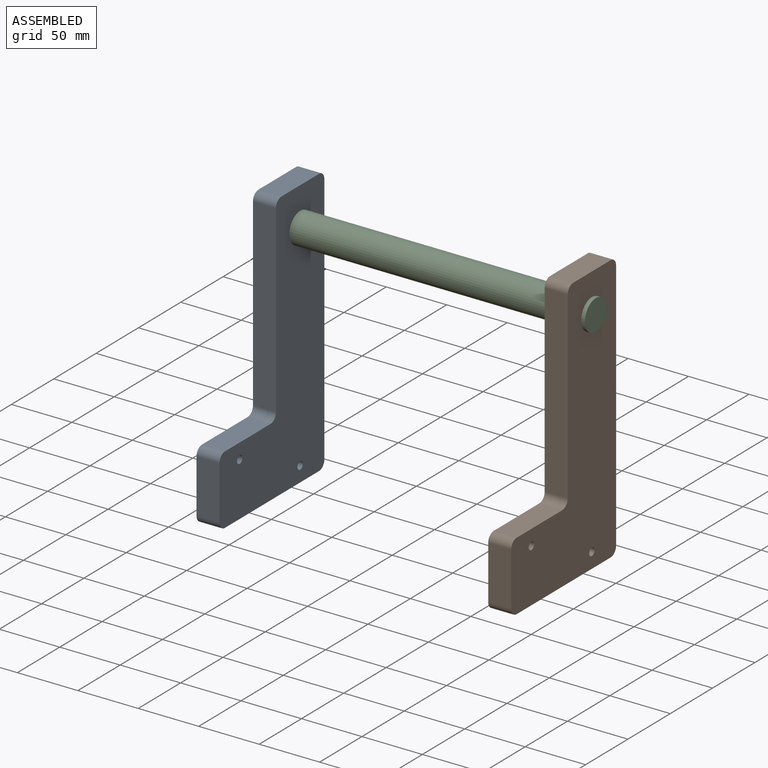
[diagram: assembled view]
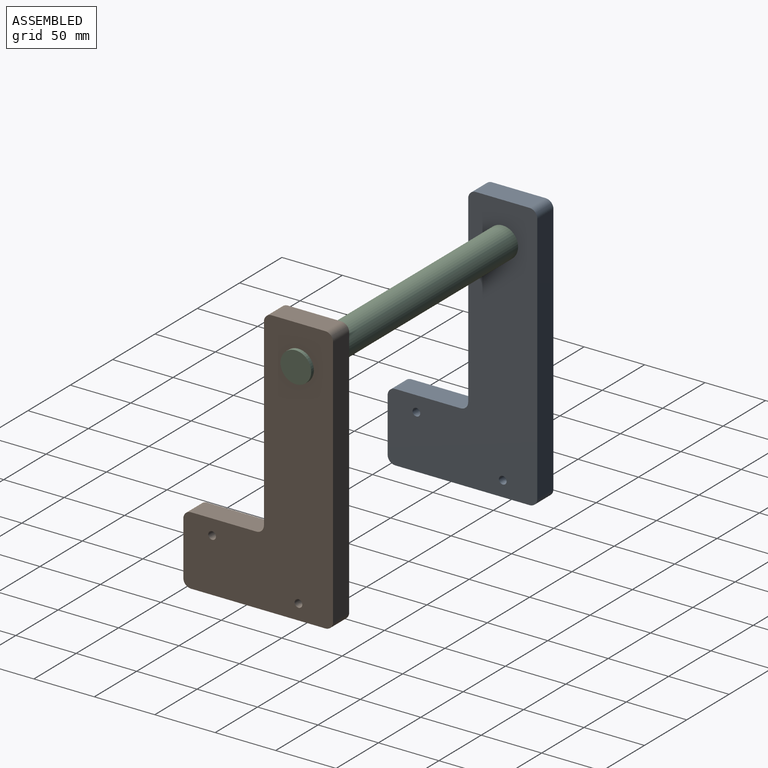
[diagram: assembled view, second angle]
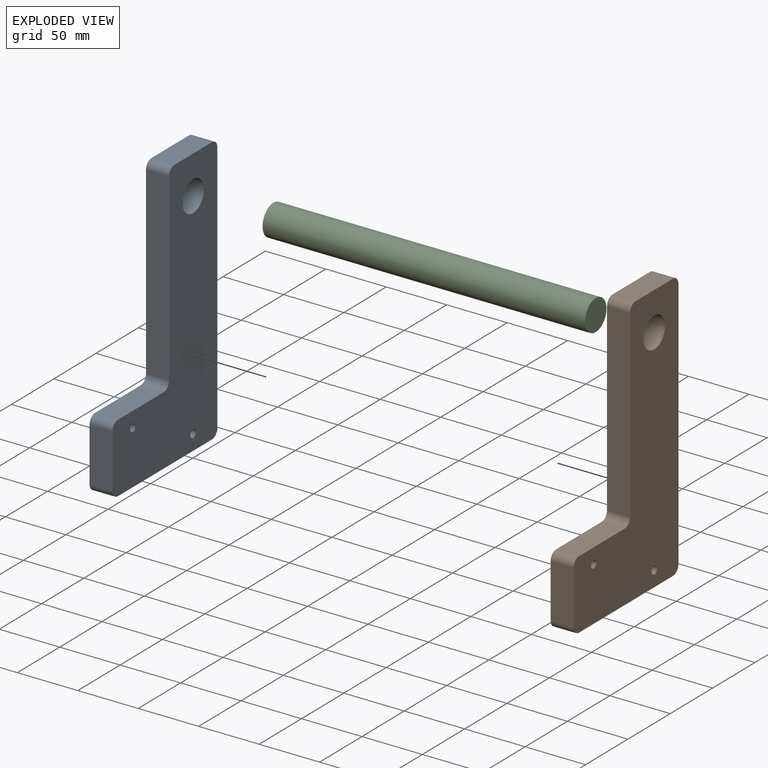
[diagram: exploded view]
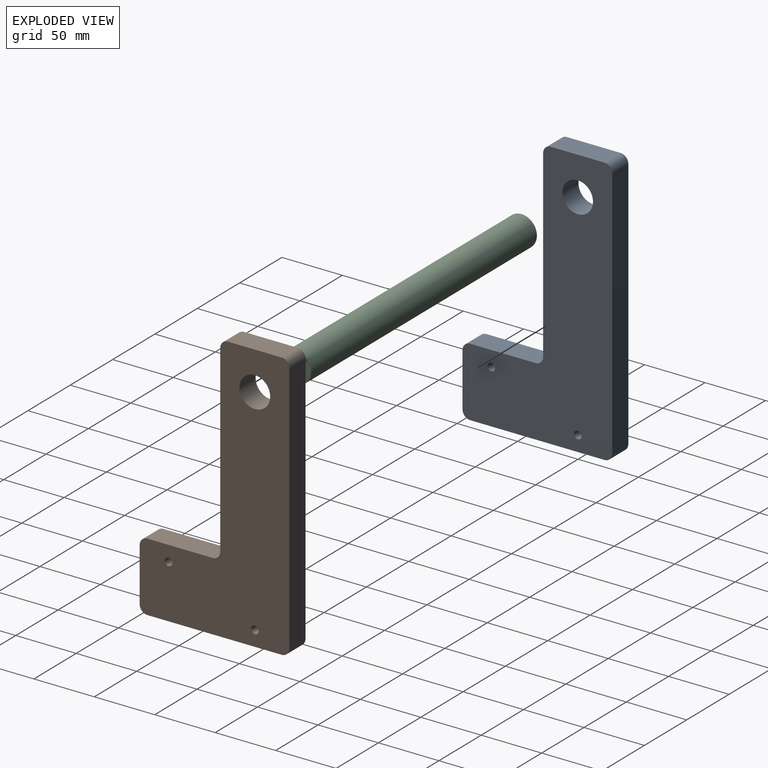
[diagram: exploded view, second angle]
ASSEMBLY  parts=3 mates=2
PART A: 17 faces, bbox 222.3x19.1x123.8 mm
  f0: plane 44.45x19.05mm, normal (0,0,-1), area 846.8mm2, adj f9,f10,f11,f16
  f1: plane 53.98x19.05mm, normal (1,0,0), area 1028.2mm2, adj f9,f10,f11,f12
  f2: plane 152.4x19.05mm, normal (0,0,-1), area 2903.2mm2, adj f9,f10,f12,f13
  f3: plane 44.45x19.05mm, normal (1,0,0), area 846.8mm2, adj f9,f10,f13,f14
  f4: plane 209.55x19.05mm, normal (0,0,1), area 3991.9mm2, adj f9,f10,f14,f15
  f5: cylinder r=12.7mm len=25.4mm, axis (0,1,0), area 1520.1mm2, adj f9,f10
  f6: cylinder r=3.17mm len=19.05mm, axis (0,1,0), area 380mm2, adj f9,f10
  f7: cylinder r=3.17mm len=19.05mm, axis (0,1,0), area 380mm2, adj f9,f10
  f8: plane 111.13x19.05mm, normal (-1,0,0), area 2116.9mm2, adj f9,f10,f15,f16
  f9: plane 222.25x123.83mm, normal (0,-1,0), area 15907.4mm2, adj f0,f1,f2,f3,f4,f5,f6,f7
  f10: plane 222.25x123.83mm, normal (0,1,0), area 15907.4mm2, adj f0,f1,f2,f3,f4,f5,f6,f7
  f11: cylinder r=6.35mm len=19.05mm, axis (0,1,0), area 190mm2, adj f0,f1,f9,f10
  f12: cylinder r=6.35mm len=19.05mm, axis (0,-1,0), area 190mm2, adj f1,f2,f9,f10
  f13: cylinder r=6.35mm len=19.05mm, axis (0,1,0), area 190mm2, adj f2,f3,f9,f10
  f14: cylinder r=6.35mm len=19.05mm, axis (0,1,0), area 190mm2, adj f3,f4,f9,f10
  f15: cylinder r=6.35mm len=19.05mm, axis (0,1,0), area 190mm2, adj f4,f8,f9,f10
  f16: cylinder r=6.35mm len=19.05mm, axis (0,1,0), area 190mm2, adj f0,f8,f9,f10
PART B: same geometry as A
PART C: 3 faces, bbox 266.7x25.4x25.4 mm
  f0: cylinder r=12.7mm len=266.7mm, axis (-1,0,0), area 21281.7mm2, adj f1,f2
  f1: plane 25.4x25.4mm, normal (1,0,0), area 506.7mm2, adj f0
  f2: plane 25.4x25.4mm, normal (-1,0,0), area 506.7mm2, adj f0
PLACE A rot(axis=(-0.58,-0.58,-0.58),120deg) t=(-111.13,-28.58,-133.35)mm
PLACE B rot(axis=(-0.58,-0.58,-0.58),120deg) t=(130.18,-28.58,-133.35)mm
PLACE C at identity fixed
MATE fastened B.f5 <-> C.f0  axis (1,0,0) through (130.18,0,0)mm
MATE fastened A.f5 <-> C.f0  axis (-1,0,0) through (-130.18,0,0)mm
